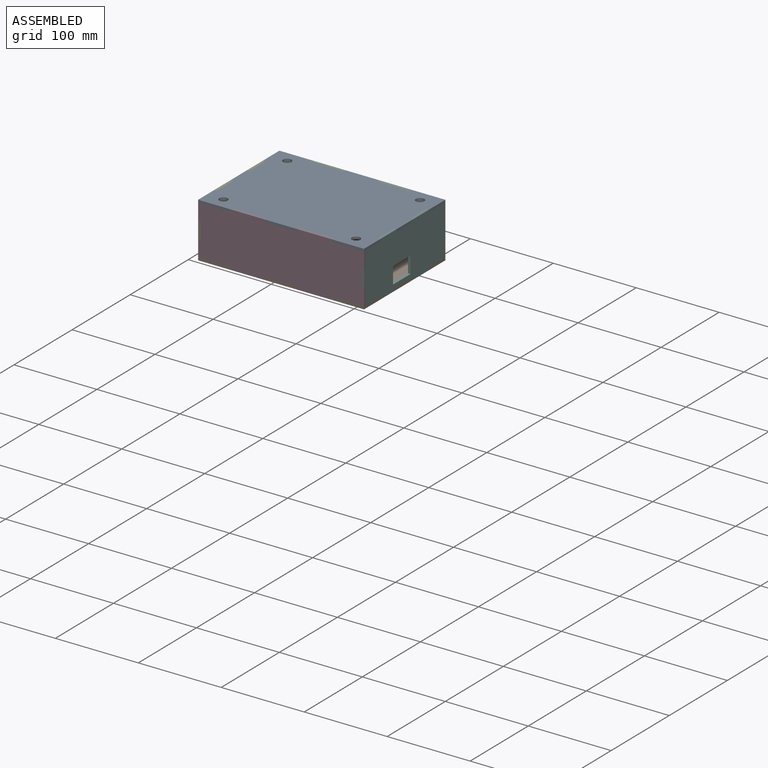
[diagram: assembled view]
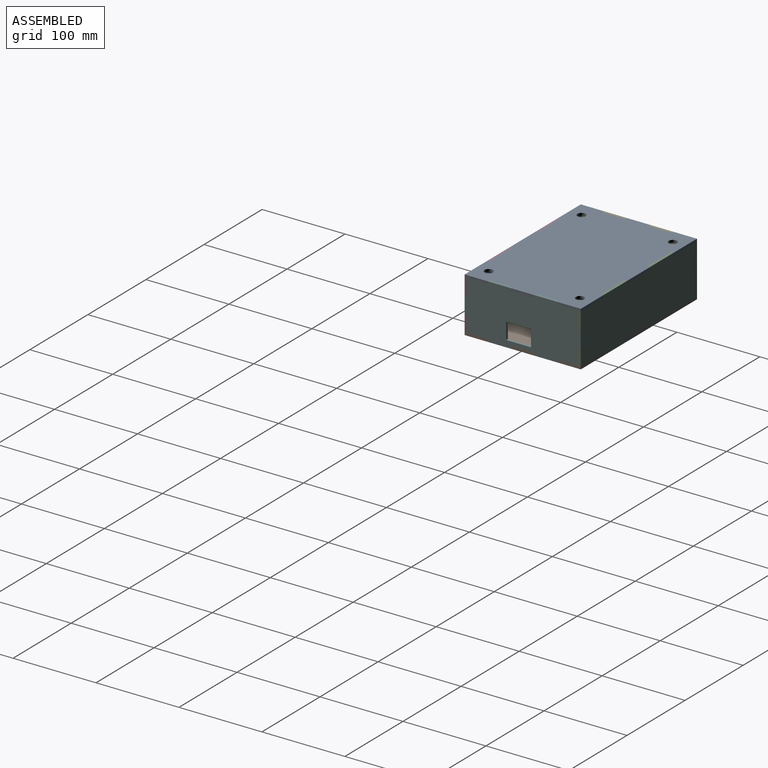
[diagram: assembled view, second angle]
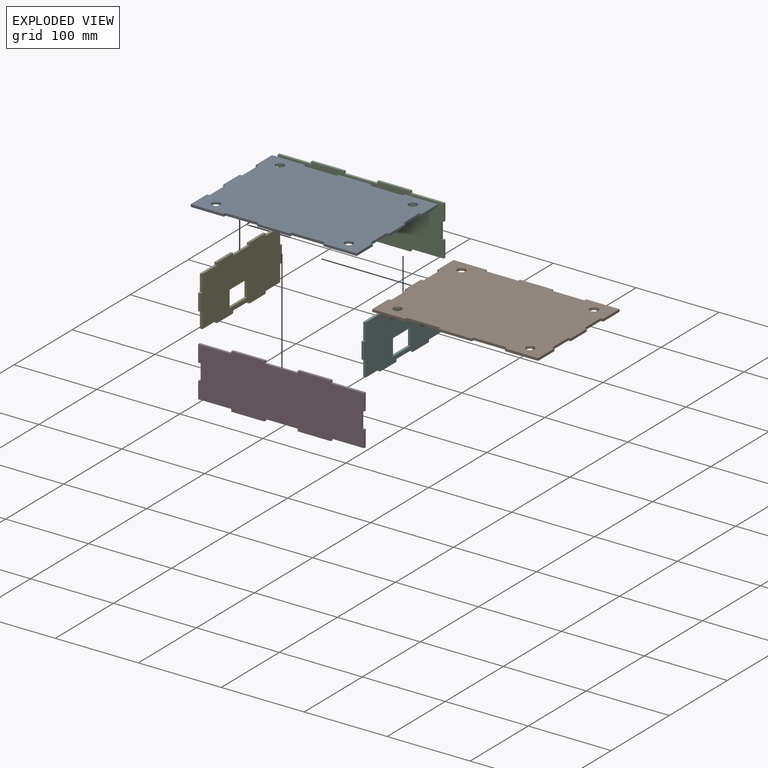
[diagram: exploded view]
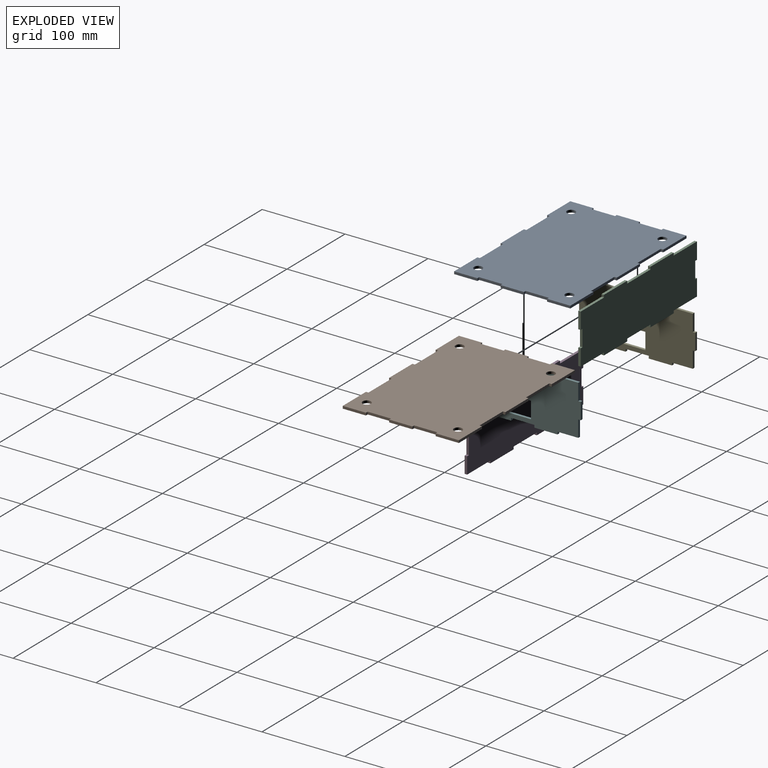
[diagram: exploded view, second angle]
ASSEMBLY  parts=6 mates=5
PART A: 42 faces, bbox 200x140x3 mm
  f0: plane 28x3mm, normal (-1,0,0), area 84mm2, adj f1,f39,f40,f41
  f1: plane 3x3mm, normal (0,-1,0), area 9mm2, adj f0,f2,f40,f41
  f2: plane 28x3mm, normal (-1,0,0), area 84mm2, adj f1,f3,f40,f41
  f3: plane 3x3mm, normal (0,1,0), area 9mm2, adj f2,f4,f40,f41
  f4: plane 28x3mm, normal (-1,0,0), area 84mm2, adj f3,f5,f40,f41
  f5: plane 40x3mm, normal (0,-1,0), area 120mm2, adj f4,f6,f40,f41
  f6: plane 3x3mm, normal (1,0,0), area 9mm2, adj f5,f7,f40,f41
  f7: plane 40x3mm, normal (0,-1,0), area 120mm2, adj f6,f8,f40,f41
  f8: plane 3x3mm, normal (-1,0,0), area 9mm2, adj f7,f9,f40,f41
  f9: plane 40x3mm, normal (0,-1,0), area 120mm2, adj f8,f10,f40,f41
  f10: plane 3x3mm, normal (1,0,0), area 9mm2, adj f9,f11,f40,f41
  f11: plane 40x3mm, normal (0,-1,0), area 120mm2, adj f10,f12,f40,f41
  f12: plane 3x3mm, normal (-1,0,0), area 9mm2, adj f11,f13,f40,f41
  f13: plane 40x3mm, normal (0,-1,0), area 120mm2, adj f12,f14,f40,f41
  f14: plane 28x3mm, normal (1,0,0), area 84mm2, adj f13,f15,f40,f41
  f15: plane 3x3mm, normal (0,1,0), area 9mm2, adj f14,f16,f40,f41
  f16: plane 28x3mm, normal (1,0,0), area 84mm2, adj f15,f17,f40,f41
  f17: plane 3x3mm, normal (0,-1,0), area 9mm2, adj f16,f18,f40,f41
  f18: plane 28x3mm, normal (1,0,0), area 84mm2, adj f17,f19,f40,f41
  f19: plane 3x3mm, normal (0,1,0), area 9mm2, adj f18,f20,f40,f41
  f20: plane 28x3mm, normal (1,0,0), area 84mm2, adj f19,f21,f40,f41
  f21: plane 3x3mm, normal (0,-1,0), area 9mm2, adj f20,f22,f40,f41
  f22: plane 28x3mm, normal (1,0,0), area 84mm2, adj f21,f23,f40,f41
  f23: plane 40x3mm, normal (0,1,0), area 120mm2, adj f22,f24,f40,f41
  f24: plane 3x3mm, normal (-1,0,0), area 9mm2, adj f23,f25,f40,f41
  f25: plane 40x3mm, normal (0,1,0), area 120mm2, adj f24,f26,f40,f41
  f26: plane 3x3mm, normal (1,0,0), area 9mm2, adj f25,f27,f40,f41
  f27: plane 40x3mm, normal (0,1,0), area 120mm2, adj f26,f28,f40,f41
  f28: plane 3x3mm, normal (-1,0,0), area 9mm2, adj f27,f29,f40,f41
  f29: plane 40x3mm, normal (0,1,0), area 120mm2, adj f28,f30,f40,f41
  f30: plane 3x3mm, normal (1,0,0), area 9mm2, adj f29,f31,f40,f41
  f31: plane 40x3mm, normal (0,1,0), area 120mm2, adj f30,f32,f40,f41
  f32: plane 28x3mm, normal (-1,0,0), area 84mm2, adj f31,f33,f40,f41
  f33: plane 3x3mm, normal (0,-1,0), area 9mm2, adj f32,f34,f40,f41
  f34: plane 28x3mm, normal (-1,0,0), area 84mm2, adj f33,f39,f40,f41
  f35: cylinder r=5mm len=10mm, axis (0,0,-1), area 94.2mm2, adj f40,f41
  f36: cylinder r=5mm len=10mm, axis (0,0,-1), area 94.2mm2, adj f40,f41
  f37: cylinder r=5mm len=10mm, axis (0,0,-1), area 94.2mm2, adj f40,f41
  f38: cylinder r=5mm len=10mm, axis (0,0,-1), area 94.2mm2, adj f40,f41
  f39: plane 3x3mm, normal (0,1,0), area 9mm2, adj f0,f34,f40,f41
  f40: plane 200x140mm, normal (0,0,1), area 26869.8mm2, adj f0,f1,f2,f3,f4,f5,f6,f7
  f41: plane 200x140mm, normal (0,0,-1), area 26869.8mm2, adj f0,f1,f2,f3,f4,f5,f6,f7
PART B: same geometry as A
PART C: 30 faces, bbox 200x3x66 mm
  f0: plane 20x3mm, normal (-1,0,0), area 60mm2, adj f1,f27,f28,f29
  f1: plane 40x3mm, normal (0,0,-1), area 120mm2, adj f0,f2,f28,f29
  f2: plane 3x3mm, normal (-1,0,0), area 9mm2, adj f1,f3,f28,f29
  f3: plane 40x3mm, normal (0,0,-1), area 120mm2, adj f2,f4,f28,f29
  f4: plane 3x3mm, normal (1,0,0), area 9mm2, adj f3,f5,f28,f29
  f5: plane 40x3mm, normal (0,0,-1), area 120mm2, adj f4,f6,f28,f29
  f6: plane 3x3mm, normal (-1,0,0), area 9mm2, adj f5,f7,f28,f29
  f7: plane 40x3mm, normal (0,0,-1), area 120mm2, adj f6,f8,f28,f29
  f8: plane 3x3mm, normal (1,0,0), area 9mm2, adj f7,f9,f28,f29
  f9: plane 40x3mm, normal (0,0,-1), area 120mm2, adj f8,f10,f28,f29
  f10: plane 20x3mm, normal (1,0,0), area 60mm2, adj f9,f11,f28,f29
  f11: plane 3x3mm, normal (0,0,1), area 9mm2, adj f10,f12,f28,f29
  f12: plane 20x3mm, normal (1,0,0), area 60mm2, adj f11,f13,f28,f29
  f13: plane 3x3mm, normal (0,0,-1), area 9mm2, adj f12,f14,f28,f29
  f14: plane 20x3mm, normal (1,0,0), area 60mm2, adj f13,f15,f28,f29
  f15: plane 40x3mm, normal (0,0,1), area 120mm2, adj f14,f16,f28,f29
  f16: plane 3x3mm, normal (1,0,0), area 9mm2, adj f15,f17,f28,f29
  f17: plane 40x3mm, normal (0,0,1), area 120mm2, adj f16,f18,f28,f29
  f18: plane 3x3mm, normal (-1,0,0), area 9mm2, adj f17,f19,f28,f29
  f19: plane 40x3mm, normal (0,0,1), area 120mm2, adj f18,f20,f28,f29
  f20: plane 3x3mm, normal (1,0,0), area 9mm2, adj f19,f21,f28,f29
  f21: plane 40x3mm, normal (0,0,1), area 120mm2, adj f20,f22,f28,f29
  f22: plane 3x3mm, normal (-1,0,0), area 9mm2, adj f21,f23,f28,f29
  f23: plane 40x3mm, normal (0,0,1), area 120mm2, adj f22,f24,f28,f29
  f24: plane 20x3mm, normal (-1,0,0), area 60mm2, adj f23,f25,f28,f29
  f25: plane 3x3mm, normal (0,0,-1), area 9mm2, adj f24,f26,f28,f29
  f26: plane 20x3mm, normal (-1,0,0), area 60mm2, adj f25,f27,f28,f29
  f27: plane 3x3mm, normal (0,0,1), area 9mm2, adj f0,f26,f28,f29
  f28: plane 200x66mm, normal (0,-1,0), area 12360mm2, adj f0,f1,f2,f3,f4,f5,f6,f7
  f29: plane 200x66mm, normal (0,1,0), area 12360mm2, adj f0,f1,f2,f3,f4,f5,f6,f7
PART D: same geometry as C
PART E: 34 faces, bbox 3x140x66 mm
  f0: plane 20x3mm, normal (0,-1,0), area 60mm2, adj f1,f31,f32,f33
  f1: plane 25x3mm, normal (0,0,-1), area 75mm2, adj f0,f2,f32,f33
  f2: plane 3x3mm, normal (0,-1,0), area 9mm2, adj f1,f3,f32,f33
  f3: plane 28x3mm, normal (0,0,-1), area 84mm2, adj f2,f4,f32,f33
  f4: plane 3x3mm, normal (0,1,0), area 9mm2, adj f3,f5,f32,f33
  f5: plane 28x3mm, normal (0,0,-1), area 84mm2, adj f4,f6,f32,f33
  f6: plane 3x3mm, normal (0,-1,0), area 9mm2, adj f5,f7,f32,f33
  f7: plane 28x3mm, normal (0,0,-1), area 84mm2, adj f6,f8,f32,f33
  f8: plane 3x3mm, normal (0,1,0), area 9mm2, adj f7,f9,f32,f33
  f9: plane 25x3mm, normal (0,0,-1), area 75mm2, adj f8,f10,f32,f33
  f10: plane 20x3mm, normal (0,1,0), area 60mm2, adj f9,f11,f32,f33
  f11: plane 3x3mm, normal (0,0,-1), area 9mm2, adj f10,f12,f32,f33
  f12: plane 20x3mm, normal (0,1,0), area 60mm2, adj f11,f13,f32,f33
  f13: plane 3x3mm, normal (0,0,1), area 9mm2, adj f12,f14,f32,f33
  f14: plane 20x3mm, normal (0,1,0), area 60mm2, adj f13,f15,f32,f33
  f15: plane 25x3mm, normal (0,0,1), area 75mm2, adj f14,f16,f32,f33
  f16: plane 3x3mm, normal (0,1,0), area 9mm2, adj f15,f17,f32,f33
  f17: plane 28x3mm, normal (0,0,1), area 84mm2, adj f16,f18,f32,f33
  f18: plane 3x3mm, normal (0,-1,0), area 9mm2, adj f17,f19,f32,f33
  f19: plane 28x3mm, normal (0,0,1), area 84mm2, adj f18,f20,f32,f33
  f20: plane 3x3mm, normal (0,1,0), area 9mm2, adj f19,f21,f32,f33
  f21: plane 28x3mm, normal (0,0,1), area 84mm2, adj f20,f22,f32,f33
  f22: plane 3x3mm, normal (0,-1,0), area 9mm2, adj f21,f23,f32,f33
  f23: plane 25x3mm, normal (0,0,1), area 75mm2, adj f22,f24,f32,f33
  f24: plane 20x3mm, normal (0,-1,0), area 60mm2, adj f23,f25,f32,f33
  f25: plane 3x3mm, normal (0,0,1), area 9mm2, adj f24,f26,f32,f33
  f26: plane 20x3mm, normal (0,-1,0), area 60mm2, adj f25,f31,f32,f33
  f27: plane 20x3mm, normal (0,1,0), area 60mm2, adj f28,f30,f32,f33
  f28: plane 30x3mm, normal (0,0,-1), area 90mm2, adj f27,f29,f32,f33
  f29: plane 20x3mm, normal (0,-1,0), area 60mm2, adj f28,f30,f32,f33
  f30: plane 30x3mm, normal (0,0,1), area 90mm2, adj f27,f29,f32,f33
  f31: plane 3x3mm, normal (0,0,-1), area 9mm2, adj f0,f26,f32,f33
  f32: plane 140x66mm, normal (1,0,0), area 7896mm2, adj f0,f1,f2,f3,f4,f5,f6,f7
  f33: plane 140x66mm, normal (-1,0,0), area 7896mm2, adj f0,f1,f2,f3,f4,f5,f6,f7
PART F: same geometry as E
PLACE A t=(-196.65,26.64,57.3)mm
PLACE B t=(-196.65,26.64,-5.7)mm
PLACE C t=(-196.65,166.64,-2.7)mm
PLACE D t=(-196.65,29.64,-2.7)mm
PLACE E t=(-196.65,29.64,-2.7)mm
PLACE F t=(0.35,29.64,-2.7)mm
MATE fastened F.f13 <-> C.f13  axis (0,0,1) through (1.85,165.14,37.3)mm
MATE fastened D.f2 <-> B.f6  axis (-1,0,0) through (-156.65,28.14,-4.2)mm
MATE fastened E.f31 <-> D.f27  axis (0,0,-1) through (-195.15,28.14,17.3)mm
MATE fastened A.f15 <-> F.f22  axis (0,1,0) through (1.85,54.64,58.8)mm
MATE fastened C.f25 <-> E.f13  axis (0,0,-1) through (-195.15,165.14,37.3)mm
